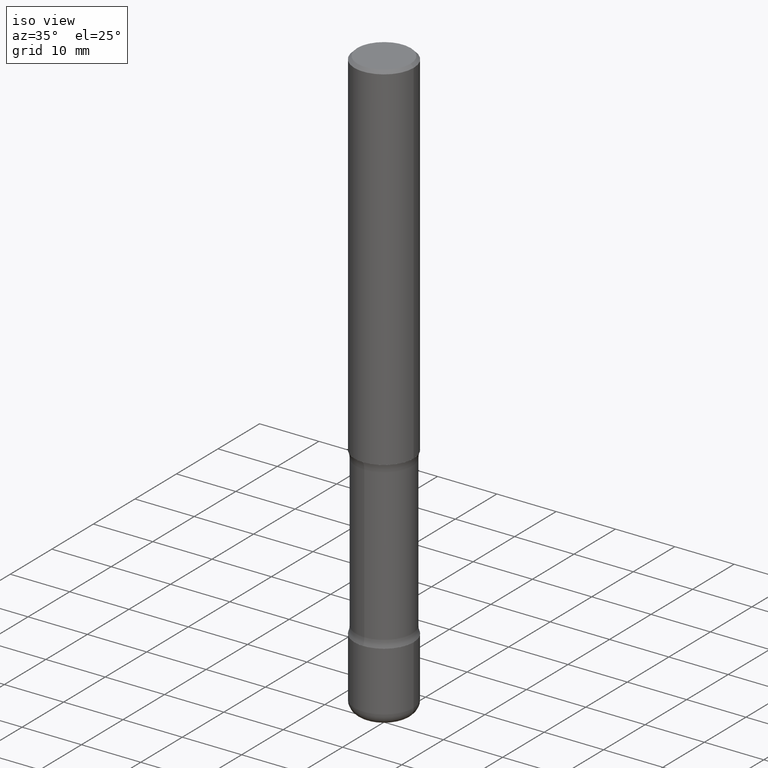
[diagram: clean part render]
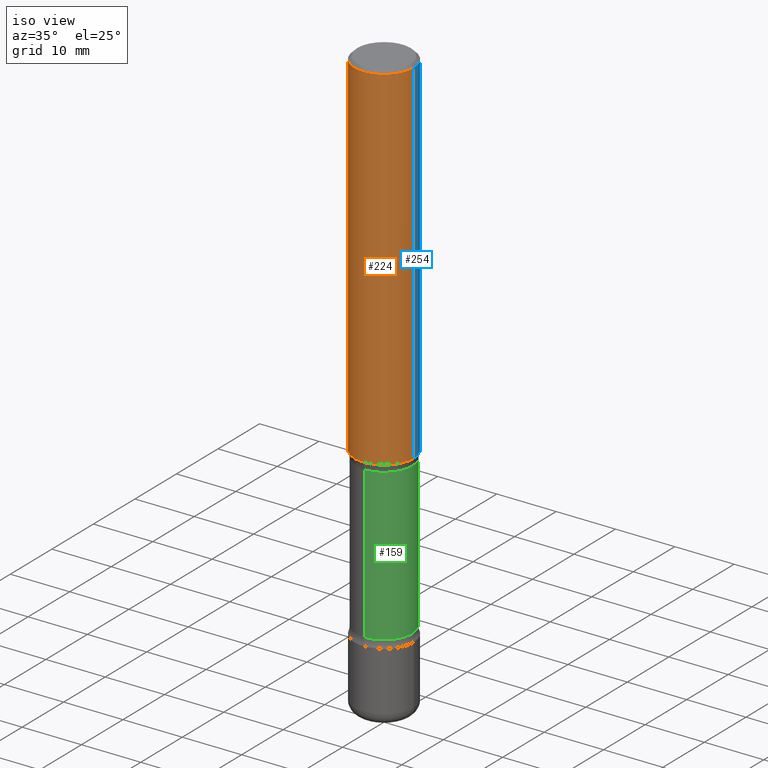
[diagram: same view with three faces highlighted in distinct colors, each labeled with its STEP entity id]
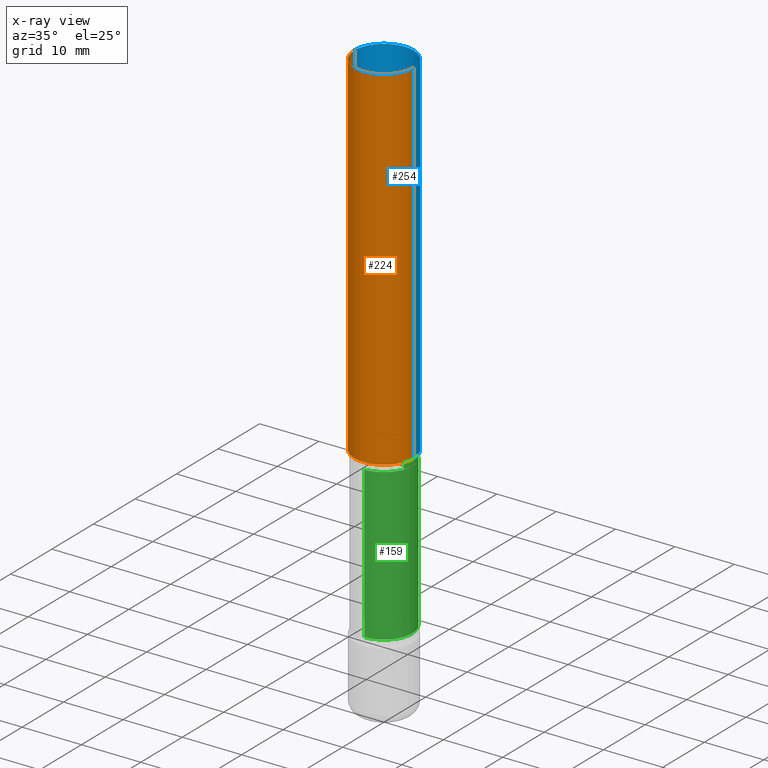
[diagram: x-ray of the same camera — body ghosted, the three highlighted faces saturated]
A machine part, iso view with three faces highlighted in distinct colors.
The next image is the same camera in x-ray (body ghosted, the three faces saturated) — at least one of them is partly hidden behind the body in this view.
Their STEP definitions:

[orange] entity #224 — the highlighted cylindrical surface (edge-blend (fillet) strip) has radius 5 mm, axis along (-0, 0, 1).
#1 = DIRECTION ( 'NONE',  ( -2.445468806185136877E-29, 3.491481338843145188E-15, 1.000000000000000000 ) ) ;
#11 = ORIENTED_EDGE ( 'NONE', *, *, #134, .F. ) ;
#18 = ORIENTED_EDGE ( 'NONE', *, *, #169, .T. ) ;
#36 = AXIS2_PLACEMENT_3D ( 'NONE', #556, #518, #307 ) ;
#48 = LINE ( 'NONE', #217, #454 ) ;
#58 = ORIENTED_EDGE ( 'NONE', *, *, #537, .F. ) ;
#68 = CARTESIAN_POINT ( 'NONE',  ( 0.1968499999999999139, -1.420318657638188530E-15, -0.02000000000000006981 ) ) ;
#106 = DIRECTION ( 'NONE',  ( -2.445468806185136877E-29, 3.491481338843145188E-15, 1.000000000000000000 ) ) ;
#124 = VERTEX_POINT ( 'NONE', #215 ) ;
#134 = EDGE_CURVE ( 'NONE', #124, #273, #330, .T. ) ;
#158 = VERTEX_POINT ( 'NONE', #520 ) ;
#169 = EDGE_CURVE ( 'NONE', #280, #158, #346, .T. ) ;
#215 = CARTESIAN_POINT ( 'NONE',  ( -0.1968499999999999139, 1.304766576325677916E-15, -0.02000000000000006981 ) ) ;
#217 = CARTESIAN_POINT ( 'NONE',  ( -0.1968500000000000250, 1.398703375343757393E-15, -9.682923725166783677E-30 ) ) ;
#219 = VECTOR ( 'NONE', #106, 39.37007874015748143 ) ;
#223 = DIRECTION ( 'NONE',  ( -2.445468806185136597E-29, 3.491481338843145583E-15, 1.000000000000000000 ) ) ;
#224 = ADVANCED_FACE ( 'NONE', ( #310 ), #532, .T. ) ;
#246 = EDGE_LOOP ( 'NONE', ( #58, #18, #314, #11 ) ) ;
#262 = CARTESIAN_POINT ( 'NONE',  ( 5.776686413970529753E-29, -8.247577218615279626E-15, -2.362200000000000077 ) ) ;
#267 = AXIS2_PLACEMENT_3D ( 'NONE', #262, #223, #385 ) ;
#270 = CARTESIAN_POINT ( 'NONE',  ( 0.1968500000000000250, -1.374596203102541608E-15, 9.598753983154300858E-30 ) ) ;
#273 = VERTEX_POINT ( 'NONE', #68 ) ;
#280 = VERTEX_POINT ( 'NONE', #437 ) ;
#307 = DIRECTION ( 'NONE',  ( 1.000000000000000000, -6.982962677686266711E-15, 0.000000000000000000 ) ) ;
#310 = FACE_OUTER_BOUND ( 'NONE', #246, .T. ) ;
#314 = ORIENTED_EDGE ( 'NONE', *, *, #342, .T. ) ;
#330 = CIRCLE ( 'NONE', #36, 0.1968499999999999139 ) ;
#342 = EDGE_CURVE ( 'NONE', #158, #273, #358, .T. ) ;
#346 = CIRCLE ( 'NONE', #267, 0.1968500000000001082 ) ;
#358 = LINE ( 'NONE', #270, #219 ) ;
#385 = DIRECTION ( 'NONE',  ( 1.000000000000000000, -6.982962677686265133E-15, 0.000000000000000000 ) ) ;
#388 = CARTESIAN_POINT ( 'NONE',  ( 0.000000000000000000, 0.000000000000000000, 0.000000000000000000 ) ) ;
#437 = CARTESIAN_POINT ( 'NONE',  ( -0.1968500000000001082, -2.760000047352311308E-15, -2.362200000000000077 ) ) ;
#454 = VECTOR ( 'NONE', #1, 39.37007874015748143 ) ;
#489 = DIRECTION ( 'NONE',  ( -2.445468806185136597E-29, 3.491481338843145583E-15, 1.000000000000000000 ) ) ;
#491 = DIRECTION ( 'NONE',  ( 1.000000000000000000, -6.982962677686265922E-15, 4.876176775795935793E-29 ) ) ;
#518 = DIRECTION ( 'NONE',  ( -2.445468806185136597E-29, 3.491481338843145583E-15, 1.000000000000000000 ) ) ;
#520 = CARTESIAN_POINT ( 'NONE',  ( 0.1968500000000001082, -9.622173421717821235E-15, -2.362200000000000077 ) ) ;
#532 = CYLINDRICAL_SURFACE ( 'NONE', #558, 0.1968500000000000250 ) ;
#537 = EDGE_CURVE ( 'NONE', #280, #124, #48, .T. ) ;
#556 = CARTESIAN_POINT ( 'NONE',  ( 4.890937612370289799E-31, -6.982962677686315028E-17, -0.02000000000000006981 ) ) ;
#558 = AXIS2_PLACEMENT_3D ( 'NONE', #388, #489, #491 ) ;

[blue] entity #254 — the highlighted cylindrical surface (edge-blend (fillet) strip) has radius 5 mm, axis along (-0, 0, 1).
#1 = DIRECTION ( 'NONE',  ( -2.445468806185136877E-29, 3.491481338843145188E-15, 1.000000000000000000 ) ) ;
#21 = ORIENTED_EDGE ( 'NONE', *, *, #342, .F. ) ;
#48 = LINE ( 'NONE', #217, #454 ) ;
#55 = AXIS2_PLACEMENT_3D ( 'NONE', #233, #538, #393 ) ;
#66 = DIRECTION ( 'NONE',  ( -2.445468806185136597E-29, 3.491481338843145583E-15, 1.000000000000000000 ) ) ;
#68 = CARTESIAN_POINT ( 'NONE',  ( 0.1968499999999999139, -1.420318657638188530E-15, -0.02000000000000006981 ) ) ;
#106 = DIRECTION ( 'NONE',  ( -2.445468806185136877E-29, 3.491481338843145188E-15, 1.000000000000000000 ) ) ;
#110 = CYLINDRICAL_SURFACE ( 'NONE', #55, 0.1968500000000000250 ) ;
#124 = VERTEX_POINT ( 'NONE', #215 ) ;
#158 = VERTEX_POINT ( 'NONE', #520 ) ;
#166 = CIRCLE ( 'NONE', #395, 0.1968499999999999139 ) ;
#181 = DIRECTION ( 'NONE',  ( 1.000000000000000000, -6.982962677686265133E-15, 0.000000000000000000 ) ) ;
#195 = ORIENTED_EDGE ( 'NONE', *, *, #206, .F. ) ;
#198 = CIRCLE ( 'NONE', #484, 0.1968500000000001082 ) ;
#206 = EDGE_CURVE ( 'NONE', #273, #124, #166, .T. ) ;
#215 = CARTESIAN_POINT ( 'NONE',  ( -0.1968499999999999139, 1.304766576325677916E-15, -0.02000000000000006981 ) ) ;
#216 = EDGE_CURVE ( 'NONE', #158, #280, #198, .T. ) ;
#217 = CARTESIAN_POINT ( 'NONE',  ( -0.1968500000000000250, 1.398703375343757393E-15, -9.682923725166783677E-30 ) ) ;
#219 = VECTOR ( 'NONE', #106, 39.37007874015748143 ) ;
#221 = CARTESIAN_POINT ( 'NONE',  ( 4.890937612370289799E-31, -6.982962677686315028E-17, -0.02000000000000006981 ) ) ;
#233 = CARTESIAN_POINT ( 'NONE',  ( 0.000000000000000000, 0.000000000000000000, 0.000000000000000000 ) ) ;
#239 = FACE_OUTER_BOUND ( 'NONE', #536, .T. ) ;
#254 = ADVANCED_FACE ( 'NONE', ( #239 ), #110, .T. ) ;
#270 = CARTESIAN_POINT ( 'NONE',  ( 0.1968500000000000250, -1.374596203102541608E-15, 9.598753983154300858E-30 ) ) ;
#273 = VERTEX_POINT ( 'NONE', #68 ) ;
#280 = VERTEX_POINT ( 'NONE', #437 ) ;
#342 = EDGE_CURVE ( 'NONE', #158, #273, #358, .T. ) ;
#348 = DIRECTION ( 'NONE',  ( 1.000000000000000000, -6.982962677686266711E-15, 0.000000000000000000 ) ) ;
#350 = DIRECTION ( 'NONE',  ( -2.445468806185136597E-29, 3.491481338843145583E-15, 1.000000000000000000 ) ) ;
#358 = LINE ( 'NONE', #270, #219 ) ;
#393 = DIRECTION ( 'NONE',  ( 1.000000000000000000, -6.982962677686265922E-15, 4.876176775795935793E-29 ) ) ;
#395 = AXIS2_PLACEMENT_3D ( 'NONE', #221, #66, #348 ) ;
#437 = CARTESIAN_POINT ( 'NONE',  ( -0.1968500000000001082, -2.760000047352311308E-15, -2.362200000000000077 ) ) ;
#451 = ORIENTED_EDGE ( 'NONE', *, *, #537, .T. ) ;
#454 = VECTOR ( 'NONE', #1, 39.37007874015748143 ) ;
#462 = ORIENTED_EDGE ( 'NONE', *, *, #216, .T. ) ;
#484 = AXIS2_PLACEMENT_3D ( 'NONE', #526, #350, #181 ) ;
#520 = CARTESIAN_POINT ( 'NONE',  ( 0.1968500000000001082, -9.622173421717821235E-15, -2.362200000000000077 ) ) ;
#526 = CARTESIAN_POINT ( 'NONE',  ( 5.776686413970529753E-29, -8.247577218615279626E-15, -2.362200000000000077 ) ) ;
#536 = EDGE_LOOP ( 'NONE', ( #462, #451, #195, #21 ) ) ;
#537 = EDGE_CURVE ( 'NONE', #280, #124, #48, .T. ) ;
#538 = DIRECTION ( 'NONE',  ( -2.445468806185136597E-29, 3.491481338843145583E-15, 1.000000000000000000 ) ) ;

[green] entity #159 — the highlighted cylindrical surface (edge-blend (fillet) strip) has radius 4.7498 mm, axis along (0, -0, -1).
#2 = DIRECTION ( 'NONE',  ( 2.642978512612468392E-29, -3.208636197684844610E-15, -1.000000000000000000 ) ) ;
#14 = VERTEX_POINT ( 'NONE', #548 ) ;
#35 = CARTESIAN_POINT ( 'NONE',  ( 1.305814020727429820E-15, 0.1869999999999864826, -3.937000000000000721 ) ) ;
#54 = CARTESIAN_POINT ( 'NONE',  ( 9.721114275267154766E-29, -1.361234598634228266E-14, -3.937000000000000277 ) ) ;
#64 = AXIS2_PLACEMENT_3D ( 'NONE', #428, #2, #475 ) ;
#81 = EDGE_LOOP ( 'NONE', ( #542, #497, #533, #458 ) ) ;
#83 = VECTOR ( 'NONE', #279, 39.37007874015748143 ) ;
#87 = DIRECTION ( 'NONE',  ( 2.642978512612468392E-29, -3.208636197684844610E-15, -1.000000000000000000 ) ) ;
#114 = EDGE_CURVE ( 'NONE', #506, #14, #155, .T. ) ;
#115 = LINE ( 'NONE', #35, #156 ) ;
#155 = CIRCLE ( 'NONE', #64, 0.1870000000000002494 ) ;
#156 = VECTOR ( 'NONE', #450, 39.37007874015748143 ) ;
#159 = ADVANCED_FACE ( 'NONE', ( #432 ), #467, .T. ) ;
#165 = AXIS2_PLACEMENT_3D ( 'NONE', #54, #87, #173 ) ;
#172 = DIRECTION ( 'NONE',  ( 2.642978512612468392E-29, -3.208636197684844610E-15, -1.000000000000000000 ) ) ;
#173 = DIRECTION ( 'NONE',  ( 6.982962677686266711E-15, 1.000000000000000000, -2.921762560068729017E-15 ) ) ;
#176 = CARTESIAN_POINT ( 'NONE',  ( 8.344026860954575633E-29, -1.194053045554857930E-14, -3.415963825191530745 ) ) ;
#190 = LINE ( 'NONE', #237, #83 ) ;
#220 = CARTESIAN_POINT ( 'NONE',  ( -1.316701078222216832E-15, -0.1870000000000119345, -3.415963825191530301 ) ) ;
#222 = DIRECTION ( 'NONE',  ( 6.982962677686266711E-15, 1.000000000000000000, -2.921762560068730989E-15 ) ) ;
#228 = AXIS2_PLACEMENT_3D ( 'NONE', #176, #172, #222 ) ;
#237 = CARTESIAN_POINT ( 'NONE',  ( -1.282913125583179628E-15, -0.1870000000000137386, -3.936999999999999389 ) ) ;
#263 = EDGE_CURVE ( 'NONE', #14, #553, #190, .T. ) ;
#279 = DIRECTION ( 'NONE',  ( 2.642978512612468392E-29, -3.208636197684844610E-15, -1.000000000000000000 ) ) ;
#319 = VERTEX_POINT ( 'NONE', #535 ) ;
#428 = CARTESIAN_POINT ( 'NONE',  ( 5.687496078559489130E-29, -8.715441493235574538E-15, -2.410836174808470123 ) ) ;
#432 = FACE_OUTER_BOUND ( 'NONE', #81, .T. ) ;
#440 = EDGE_CURVE ( 'NONE', #506, #319, #115, .T. ) ;
#450 = DIRECTION ( 'NONE',  ( 2.642978512612468392E-29, -3.208636197684844610E-15, -1.000000000000000000 ) ) ;
#452 = CARTESIAN_POINT ( 'NONE',  ( 1.305814020727390377E-15, 0.1869999999999915341, -2.410836174808470567 ) ) ;
#458 = ORIENTED_EDGE ( 'NONE', *, *, #440, .F. ) ;
#467 = CYLINDRICAL_SURFACE ( 'NONE', #165, 0.1870000000000001106 ) ;
#475 = DIRECTION ( 'NONE',  ( 6.982962677686266711E-15, 1.000000000000000000, -2.921762560068726650E-15 ) ) ;
#497 = ORIENTED_EDGE ( 'NONE', *, *, #263, .T. ) ;
#506 = VERTEX_POINT ( 'NONE', #452 ) ;
#533 = ORIENTED_EDGE ( 'NONE', *, *, #549, .F. ) ;
#535 = CARTESIAN_POINT ( 'NONE',  ( 1.305814020727415029E-15, 0.1869999999999880369, -3.415963825191531189 ) ) ;
#542 = ORIENTED_EDGE ( 'NONE', *, *, #114, .T. ) ;
#543 = CIRCLE ( 'NONE', #228, 0.1869999999999999718 ) ;
#548 = CARTESIAN_POINT ( 'NONE',  ( -1.316701078222247204E-15, -0.1870000000000089646, -2.410836174808469679 ) ) ;
#549 = EDGE_CURVE ( 'NONE', #319, #553, #543, .T. ) ;
#553 = VERTEX_POINT ( 'NONE', #220 ) ;